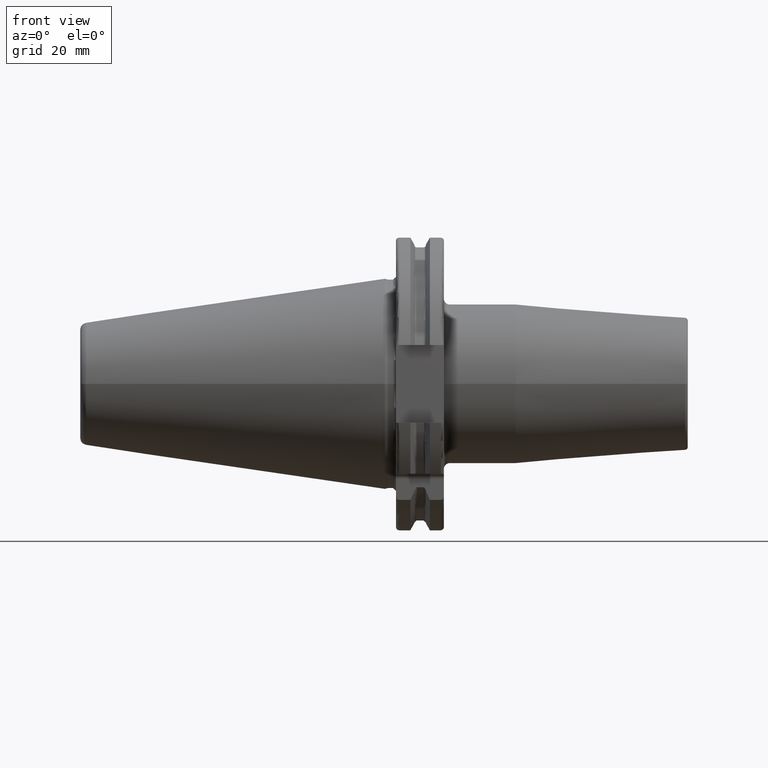
[diagram: clean part render]
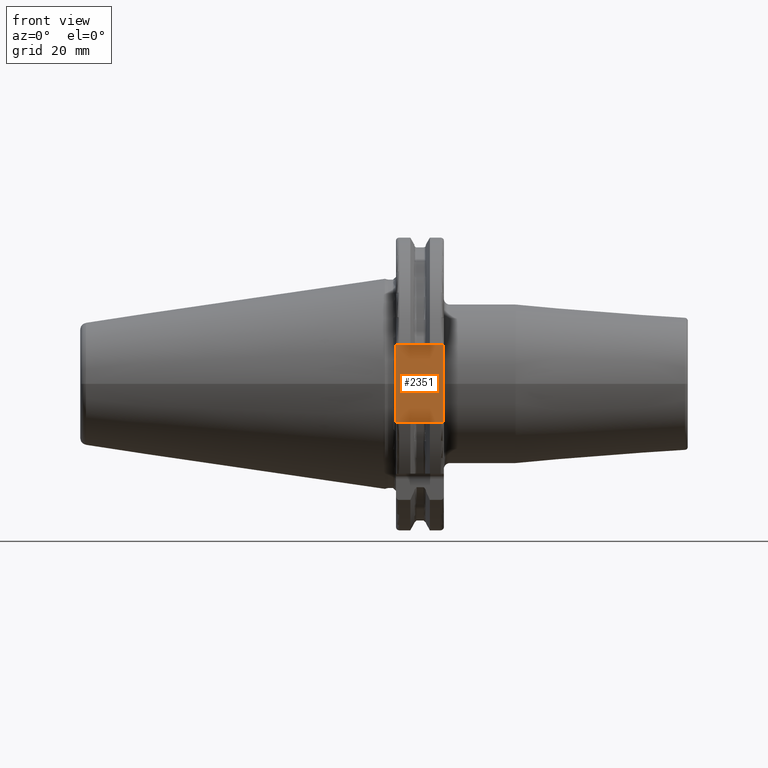
[diagram: same view with one face highlighted and labeled with its STEP entity id]
A machine part, front view. The second image highlights one B-rep face of the part: STEP entity #2351.
In plain terms, the highlighted planar face has unit normal (0, 1, 0).
Its self-contained STEP definition (entity closure, byte-faithful):
#138=DIRECTION('',(0.E0,0.E0,1.E0));
#139=VECTOR('',#138,2.58E1);
#140=CARTESIAN_POINT('',(1.905E1,-3.75E1,-1.29E1));
#141=LINE('',#140,#139);
#220=DIRECTION('',(0.E0,0.E0,1.E0));
#221=VECTOR('',#220,2.58E1);
#222=CARTESIAN_POINT('',(3.2E0,-3.75E1,-1.29E1));
#223=LINE('',#222,#221);
#347=DIRECTION('',(-1.E0,0.E0,0.E0));
#348=VECTOR('',#347,1.585E1);
#349=CARTESIAN_POINT('',(1.905E1,-3.75E1,1.29E1));
#350=LINE('',#349,#348);
#876=DIRECTION('',(-1.E0,0.E0,0.E0));
#877=VECTOR('',#876,1.585E1);
#878=CARTESIAN_POINT('',(1.905E1,-3.75E1,-1.29E1));
#879=LINE('',#878,#877);
#1337=CARTESIAN_POINT('',(1.905E1,-3.75E1,-1.29E1));
#1339=VERTEX_POINT('',#1337);
#1340=CARTESIAN_POINT('',(1.905E1,-3.75E1,1.29E1));
#1341=VERTEX_POINT('',#1340);
#1365=CARTESIAN_POINT('',(3.2E0,-3.75E1,-1.29E1));
#1367=VERTEX_POINT('',#1365);
#1368=CARTESIAN_POINT('',(3.2E0,-3.75E1,1.29E1));
#1369=VERTEX_POINT('',#1368);
#2340=CARTESIAN_POINT('',(1.905E1,-3.75E1,-1.29E1));
#2341=DIRECTION('',(0.E0,1.E0,0.E0));
#2342=DIRECTION('',(0.E0,0.E0,1.E0));
#2343=AXIS2_PLACEMENT_3D('',#2340,#2341,#2342);
#2344=PLANE('',#2343);
#2345=ORIENTED_EDGE('',*,*,#1643,.F.);
#2346=ORIENTED_EDGE('',*,*,#2198,.T.);
#2347=ORIENTED_EDGE('',*,*,#1738,.T.);
#2348=ORIENTED_EDGE('',*,*,#1952,.F.);
#2349=EDGE_LOOP('',(#2345,#2346,#2347,#2348));
#2350=FACE_OUTER_BOUND('',#2349,.F.);
#2351=ADVANCED_FACE('',(#2350),#2344,.F.);
#1643=EDGE_CURVE('',#1339,#1341,#141,.T.);
#1738=EDGE_CURVE('',#1367,#1369,#223,.T.);
#1952=EDGE_CURVE('',#1341,#1369,#350,.T.);
#2198=EDGE_CURVE('',#1339,#1367,#879,.T.);